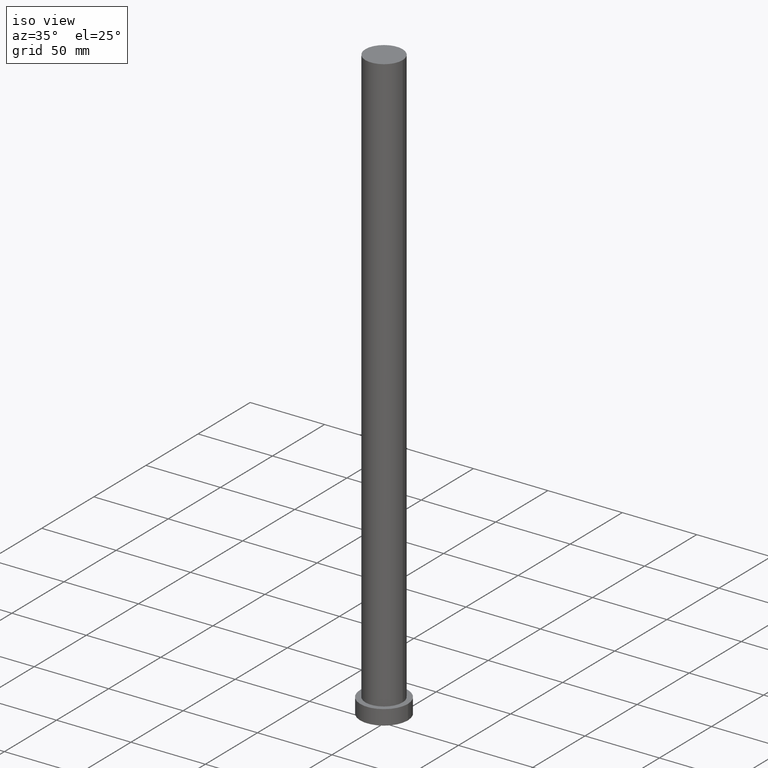
[diagram: clean part render]
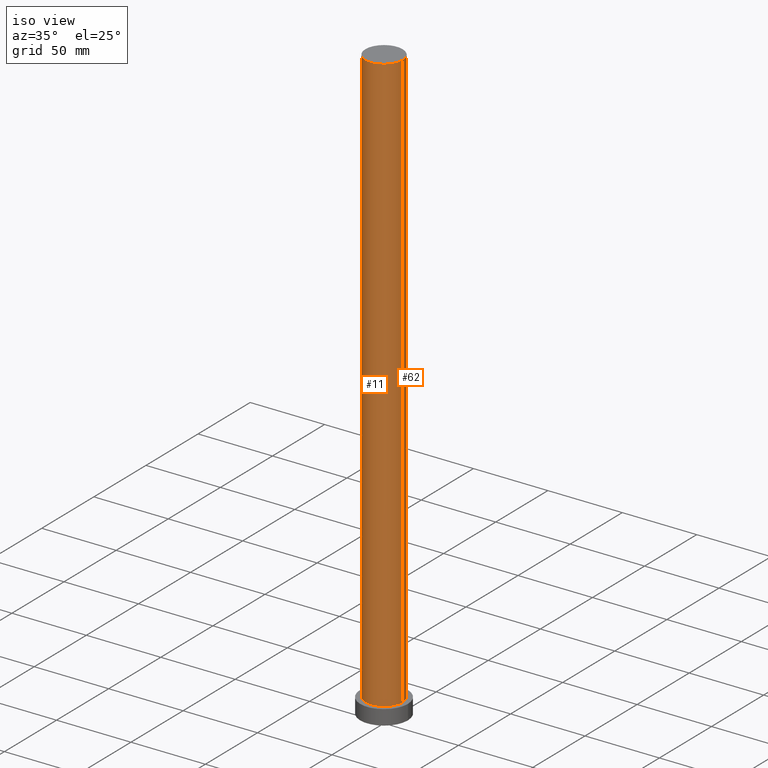
[diagram: same view with one multi-face feature highlighted, each face labeled with its STEP entity id]
A machine part, iso view. The highlighted faces form ONE feature: a constant-radius fillet chain: 2 tangent blend faces with common blend radius 12.5 mm. The faces share edges in the B-rep.
Their STEP definitions:
[1] entity #62 (Cylinder):
#8 = VECTOR ( 'NONE', #228, 1000.000000000000000 ) ;
#18 = DIRECTION ( 'NONE',  ( -0.000000000000000000, -0.000000000000000000, -1.000000000000000000 ) ) ;
#23 = CARTESIAN_POINT ( 'NONE',  ( 0.000000000000000000, 0.000000000000000000, 10.00000000000000000 ) ) ;
#28 = VECTOR ( 'NONE', #18, 1000.000000000000000 ) ;
#34 = FACE_OUTER_BOUND ( 'NONE', #248, .T. ) ;
#40 = EDGE_CURVE ( 'NONE', #79, #141, #201, .T. ) ;
#43 = DIRECTION ( 'NONE',  ( 1.000000000000000000, 0.000000000000000000, 0.000000000000000000 ) ) ;
#48 = DIRECTION ( 'NONE',  ( 0.000000000000000000, 0.000000000000000000, 1.000000000000000000 ) ) ;
#53 = DIRECTION ( 'NONE',  ( 1.000000000000000000, 0.000000000000000000, 0.000000000000000000 ) ) ;
#54 = VERTEX_POINT ( 'NONE', #148 ) ;
#62 = ADVANCED_FACE ( 'NONE', ( #34 ), #103, .T. ) ;
#70 = EDGE_CURVE ( 'NONE', #252, #79, #209, .T. ) ;
#74 = CARTESIAN_POINT ( 'NONE',  ( 12.50000000000000000, 1.530808498934191521E-15, 400.0000000000000000 ) ) ;
#77 = ORIENTED_EDGE ( 'NONE', *, *, #231, .T. ) ;
#79 = VERTEX_POINT ( 'NONE', #114 ) ;
#93 = CARTESIAN_POINT ( 'NONE',  ( 0.000000000000000000, 0.000000000000000000, 400.0000000000000000 ) ) ;
#101 = CIRCLE ( 'NONE', #203, 12.50000000000000000 ) ;
#102 = DIRECTION ( 'NONE',  ( -0.000000000000000000, -0.000000000000000000, -1.000000000000000000 ) ) ;
#103 = CYLINDRICAL_SURFACE ( 'NONE', #151, 12.50000000000000000 ) ;
#108 = ORIENTED_EDGE ( 'NONE', *, *, #255, .T. ) ;
#114 = CARTESIAN_POINT ( 'NONE',  ( -12.50000000000000000, 0.000000000000000000, 400.0000000000000000 ) ) ;
#117 = DIRECTION ( 'NONE',  ( -1.000000000000000000, 0.000000000000000000, 0.000000000000000000 ) ) ;
#123 = ORIENTED_EDGE ( 'NONE', *, *, #40, .F. ) ;
#134 = CARTESIAN_POINT ( 'NONE',  ( -12.50000000000000000, 0.000000000000000000, 10.00000000000000000 ) ) ;
#141 = VERTEX_POINT ( 'NONE', #134 ) ;
#148 = CARTESIAN_POINT ( 'NONE',  ( 12.50000000000000000, 1.530808498934191521E-15, 10.00000000000000000 ) ) ;
#151 = AXIS2_PLACEMENT_3D ( 'NONE', #196, #102, #117 ) ;
#165 = DIRECTION ( 'NONE',  ( 0.000000000000000000, 0.000000000000000000, 1.000000000000000000 ) ) ;
#169 = LINE ( 'NONE', #74, #8 ) ;
#172 = ORIENTED_EDGE ( 'NONE', *, *, #70, .F. ) ;
#196 = CARTESIAN_POINT ( 'NONE',  ( 0.000000000000000000, 0.000000000000000000, 400.0000000000000000 ) ) ;
#201 = LINE ( 'NONE', #234, #28 ) ;
#203 = AXIS2_PLACEMENT_3D ( 'NONE', #23, #165, #53 ) ;
#204 = CARTESIAN_POINT ( 'NONE',  ( 12.50000000000000000, 1.530808498934191521E-15, 400.0000000000000000 ) ) ;
#209 = CIRCLE ( 'NONE', #235, 12.50000000000000000 ) ;
#228 = DIRECTION ( 'NONE',  ( -0.000000000000000000, -0.000000000000000000, -1.000000000000000000 ) ) ;
#231 = EDGE_CURVE ( 'NONE', #252, #54, #169, .T. ) ;
#234 = CARTESIAN_POINT ( 'NONE',  ( -12.50000000000000000, 0.000000000000000000, 400.0000000000000000 ) ) ;
#235 = AXIS2_PLACEMENT_3D ( 'NONE', #93, #48, #43 ) ;
#248 = EDGE_LOOP ( 'NONE', ( #172, #77, #108, #123 ) ) ;
#252 = VERTEX_POINT ( 'NONE', #204 ) ;
#255 = EDGE_CURVE ( 'NONE', #54, #141, #101, .T. ) ;
[2] entity #11 (Cylinder):
#6 = DIRECTION ( 'NONE',  ( 1.000000000000000000, 0.000000000000000000, 0.000000000000000000 ) ) ;
#8 = VECTOR ( 'NONE', #228, 1000.000000000000000 ) ;
#11 = ADVANCED_FACE ( 'NONE', ( #162 ), #38, .T. ) ;
#13 = DIRECTION ( 'NONE',  ( 1.000000000000000000, 0.000000000000000000, 0.000000000000000000 ) ) ;
#16 = EDGE_LOOP ( 'NONE', ( #236, #250, #104, #105 ) ) ;
#18 = DIRECTION ( 'NONE',  ( -0.000000000000000000, -0.000000000000000000, -1.000000000000000000 ) ) ;
#25 = CARTESIAN_POINT ( 'NONE',  ( 0.000000000000000000, 0.000000000000000000, 400.0000000000000000 ) ) ;
#28 = VECTOR ( 'NONE', #18, 1000.000000000000000 ) ;
#38 = CYLINDRICAL_SURFACE ( 'NONE', #60, 12.50000000000000000 ) ;
#40 = EDGE_CURVE ( 'NONE', #79, #141, #201, .T. ) ;
#52 = EDGE_CURVE ( 'NONE', #141, #54, #115, .T. ) ;
#54 = VERTEX_POINT ( 'NONE', #148 ) ;
#60 = AXIS2_PLACEMENT_3D ( 'NONE', #199, #159, #183 ) ;
#63 = CARTESIAN_POINT ( 'NONE',  ( 0.000000000000000000, 0.000000000000000000, 10.00000000000000000 ) ) ;
#74 = CARTESIAN_POINT ( 'NONE',  ( 12.50000000000000000, 1.530808498934191521E-15, 400.0000000000000000 ) ) ;
#79 = VERTEX_POINT ( 'NONE', #114 ) ;
#98 = EDGE_CURVE ( 'NONE', #79, #252, #173, .T. ) ;
#104 = ORIENTED_EDGE ( 'NONE', *, *, #40, .T. ) ;
#105 = ORIENTED_EDGE ( 'NONE', *, *, #52, .T. ) ;
#114 = CARTESIAN_POINT ( 'NONE',  ( -12.50000000000000000, 0.000000000000000000, 400.0000000000000000 ) ) ;
#115 = CIRCLE ( 'NONE', #125, 12.50000000000000000 ) ;
#125 = AXIS2_PLACEMENT_3D ( 'NONE', #63, #127, #13 ) ;
#127 = DIRECTION ( 'NONE',  ( 0.000000000000000000, 0.000000000000000000, 1.000000000000000000 ) ) ;
#134 = CARTESIAN_POINT ( 'NONE',  ( -12.50000000000000000, 0.000000000000000000, 10.00000000000000000 ) ) ;
#141 = VERTEX_POINT ( 'NONE', #134 ) ;
#148 = CARTESIAN_POINT ( 'NONE',  ( 12.50000000000000000, 1.530808498934191521E-15, 10.00000000000000000 ) ) ;
#159 = DIRECTION ( 'NONE',  ( -0.000000000000000000, -0.000000000000000000, -1.000000000000000000 ) ) ;
#160 = AXIS2_PLACEMENT_3D ( 'NONE', #25, #211, #6 ) ;
#162 = FACE_OUTER_BOUND ( 'NONE', #16, .T. ) ;
#169 = LINE ( 'NONE', #74, #8 ) ;
#173 = CIRCLE ( 'NONE', #160, 12.50000000000000000 ) ;
#183 = DIRECTION ( 'NONE',  ( -1.000000000000000000, 0.000000000000000000, 0.000000000000000000 ) ) ;
#199 = CARTESIAN_POINT ( 'NONE',  ( 0.000000000000000000, 0.000000000000000000, 400.0000000000000000 ) ) ;
#201 = LINE ( 'NONE', #234, #28 ) ;
#204 = CARTESIAN_POINT ( 'NONE',  ( 12.50000000000000000, 1.530808498934191521E-15, 400.0000000000000000 ) ) ;
#211 = DIRECTION ( 'NONE',  ( 0.000000000000000000, 0.000000000000000000, 1.000000000000000000 ) ) ;
#228 = DIRECTION ( 'NONE',  ( -0.000000000000000000, -0.000000000000000000, -1.000000000000000000 ) ) ;
#231 = EDGE_CURVE ( 'NONE', #252, #54, #169, .T. ) ;
#234 = CARTESIAN_POINT ( 'NONE',  ( -12.50000000000000000, 0.000000000000000000, 400.0000000000000000 ) ) ;
#236 = ORIENTED_EDGE ( 'NONE', *, *, #231, .F. ) ;
#250 = ORIENTED_EDGE ( 'NONE', *, *, #98, .F. ) ;
#252 = VERTEX_POINT ( 'NONE', #204 ) ;